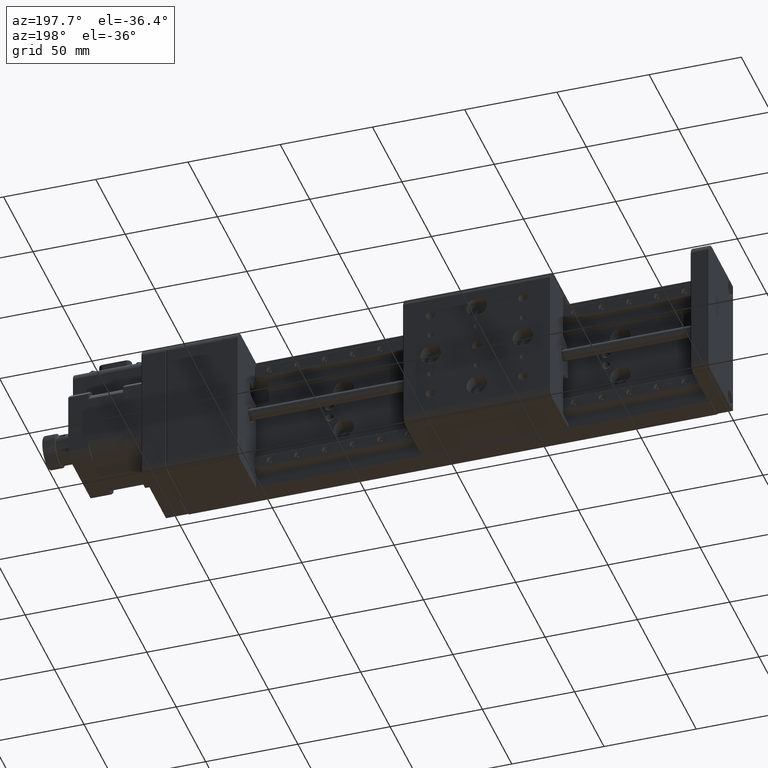
[diagram: clean part render]
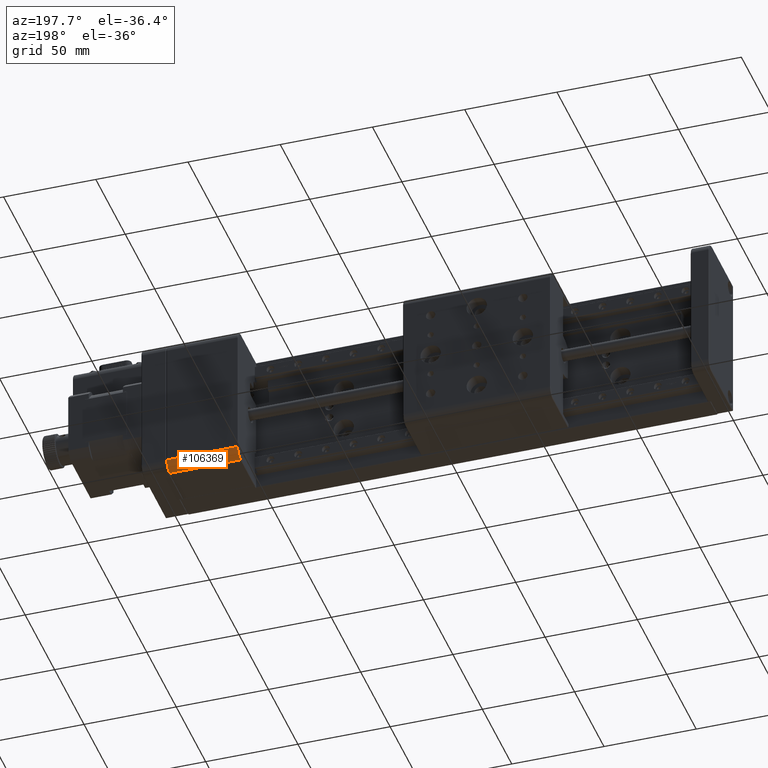
[diagram: same view with one face highlighted and labeled with its STEP entity id]
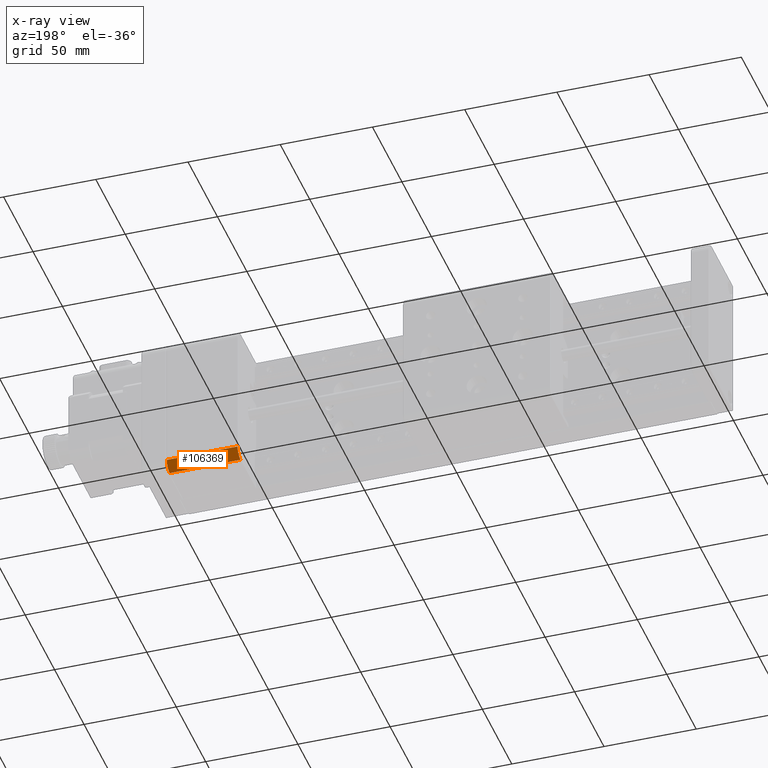
[diagram: x-ray of the same camera — body ghosted, the highlighted face saturated]
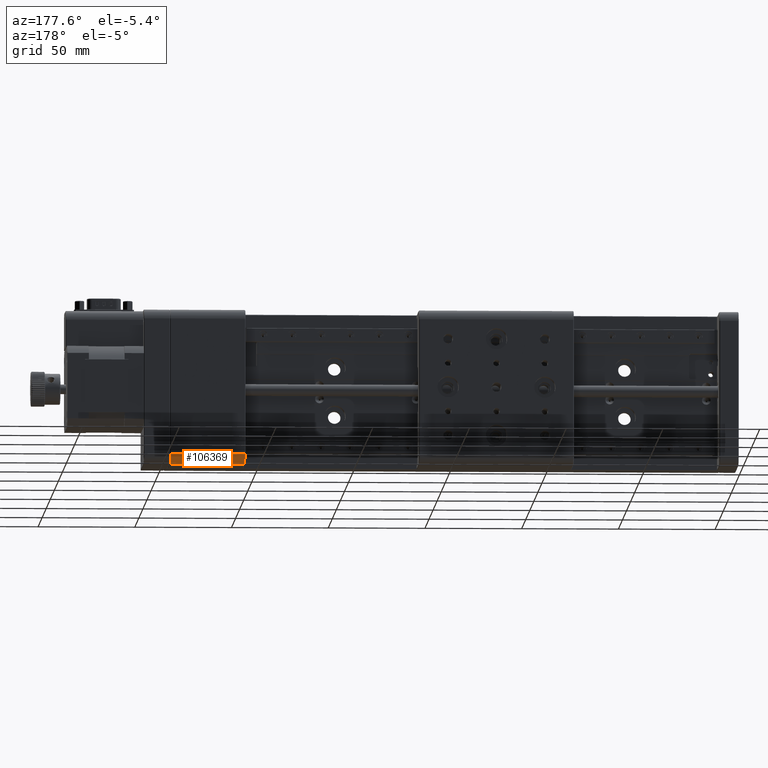
[diagram: same view with one face highlighted and labeled with its STEP entity id]
A machine part, auxiliary view. The second image highlights one B-rep face of the part: STEP entity #106369.
The next image is the same camera in x-ray: the body ghosted, the highlighted face saturated — about 0% of this face is hidden behind the body in this view.
A second angle (auxiliary view) of the same face is appended — the face is thin or edge-on in the first view.
In plain terms, the highlighted cylindrical surface (edge-blend (fillet) strip) has radius 5 mm, axis along (1, 0, 0).
Its self-contained STEP definition (entity closure, byte-faithful):
#1474 = AXIS2_PLACEMENT_3D ( 'NONE', #48874, #60003, #71097 ) ;
#7674 = LINE ( 'NONE', #17112, #129962 ) ;
#14124 = CARTESIAN_POINT ( 'NONE',  ( 293.6999999999999900, 37.50000000000002100, -75.00000000000001400 ) ) ;
#16489 = ORIENTED_EDGE ( 'NONE', *, *, #115776, .F. ) ;
#16582 = FACE_OUTER_BOUND ( 'NONE', #28226, .T. ) ;
#17112 = CARTESIAN_POINT ( 'NONE',  ( 255.0000000000000600, 42.50000000000002100, -75.00000000000001400 ) ) ;
#23829 = DIRECTION ( 'NONE',  ( -1.000000000000000000, -5.909083931956453400E-018, 0.0000000000000000000 ) ) ;
#24578 = VERTEX_POINT ( 'NONE', #85529 ) ;
#28226 = EDGE_LOOP ( 'NONE', ( #141059, #86013, #16489, #77759 ) ) ;
#34344 = CIRCLE ( 'NONE', #1474, 5.000000000000004400 ) ;
#37476 = AXIS2_PLACEMENT_3D ( 'NONE', #118460, #75999, #52384 ) ;
#39027 = EDGE_CURVE ( 'NONE', #59528, #140970, #34344, .T. ) ;
#44537 = DIRECTION ( 'NONE',  ( 1.000000000000000000, 5.909083931956453400E-018, 0.0000000000000000000 ) ) ;
#48874 = CARTESIAN_POINT ( 'NONE',  ( 255.3000000000000400, 37.50000000000002100, -75.00000000000001400 ) ) ;
#52384 = DIRECTION ( 'NONE',  ( 0.0000000000000000000, 0.0000000000000000000, -1.000000000000000000 ) ) ;
#55159 = CARTESIAN_POINT ( 'NONE',  ( 255.0000000000000600, 37.50000000000002100, -80.00000000000001400 ) ) ;
#59528 = VERTEX_POINT ( 'NONE', #128537 ) ;
#60003 = DIRECTION ( 'NONE',  ( 1.000000000000000000, 5.909083931956453400E-018, 0.0000000000000000000 ) ) ;
#66515 = VECTOR ( 'NONE', #44537, 1000.000000000000000 ) ;
#66517 = CARTESIAN_POINT ( 'NONE',  ( 293.6999999999999900, 42.50000000000002100, -75.00000000000001400 ) ) ;
#71097 = DIRECTION ( 'NONE',  ( 0.0000000000000000000, 0.0000000000000000000, -1.000000000000000000 ) ) ;
#75999 = DIRECTION ( 'NONE',  ( 1.000000000000000000, 5.909083931956453400E-018, 0.0000000000000000000 ) ) ;
#76258 = VERTEX_POINT ( 'NONE', #66517 ) ;
#77759 = ORIENTED_EDGE ( 'NONE', *, *, #130640, .T. ) ;
#85529 = CARTESIAN_POINT ( 'NONE',  ( 293.6999999999999900, 37.50000000000002100, -80.00000000000001400 ) ) ;
#85652 = CYLINDRICAL_SURFACE ( 'NONE', #37476, 5.000000000000004400 ) ;
#86013 = ORIENTED_EDGE ( 'NONE', *, *, #39027, .T. ) ;
#93215 = EDGE_CURVE ( 'NONE', #59528, #24578, #95920, .T. ) ;
#95920 = LINE ( 'NONE', #55159, #66515 ) ;
#96369 = AXIS2_PLACEMENT_3D ( 'NONE', #14124, #23829, #113540 ) ;
#105454 = DIRECTION ( 'NONE',  ( -1.000000000000000000, -5.909083931956453400E-018, -0.0000000000000000000 ) ) ;
#106369 = ADVANCED_FACE ( 'NONE', ( #16582 ), #85652, .T. ) ;
#113540 = DIRECTION ( 'NONE',  ( 0.0000000000000000000, 0.0000000000000000000, -1.000000000000000000 ) ) ;
#115302 = CIRCLE ( 'NONE', #96369, 5.000000000000004400 ) ;
#115776 = EDGE_CURVE ( 'NONE', #76258, #140970, #7674, .T. ) ;
#115931 = CARTESIAN_POINT ( 'NONE',  ( 255.3000000000000400, 42.50000000000002100, -75.00000000000001400 ) ) ;
#118460 = CARTESIAN_POINT ( 'NONE',  ( 255.0000000000000600, 37.50000000000002100, -75.00000000000001400 ) ) ;
#128537 = CARTESIAN_POINT ( 'NONE',  ( 255.3000000000000400, 37.50000000000002100, -80.00000000000001400 ) ) ;
#129962 = VECTOR ( 'NONE', #105454, 1000.000000000000000 ) ;
#130640 = EDGE_CURVE ( 'NONE', #76258, #24578, #115302, .T. ) ;
#140970 = VERTEX_POINT ( 'NONE', #115931 ) ;
#141059 = ORIENTED_EDGE ( 'NONE', *, *, #93215, .F. ) ;